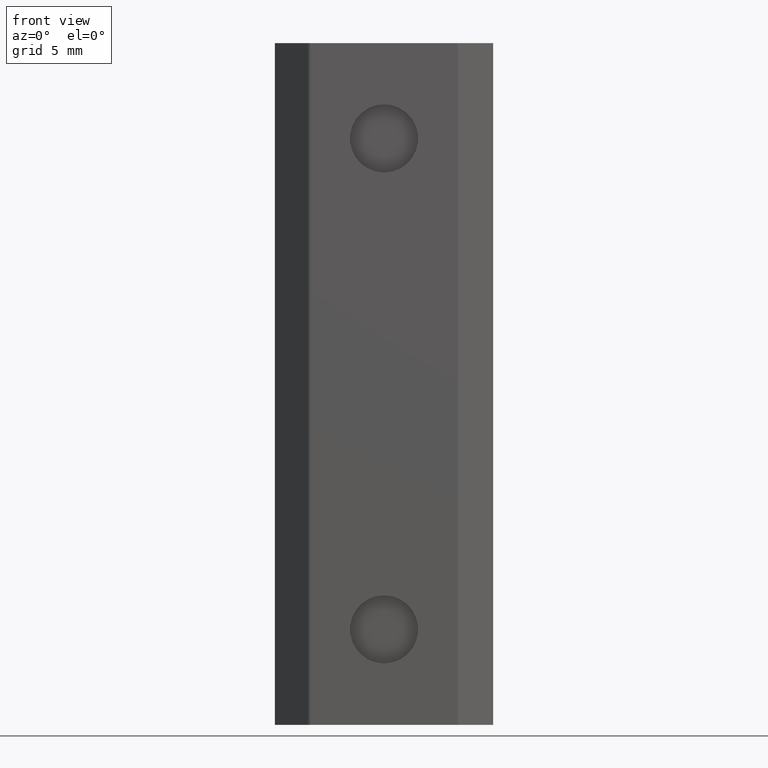
[diagram: clean part render]
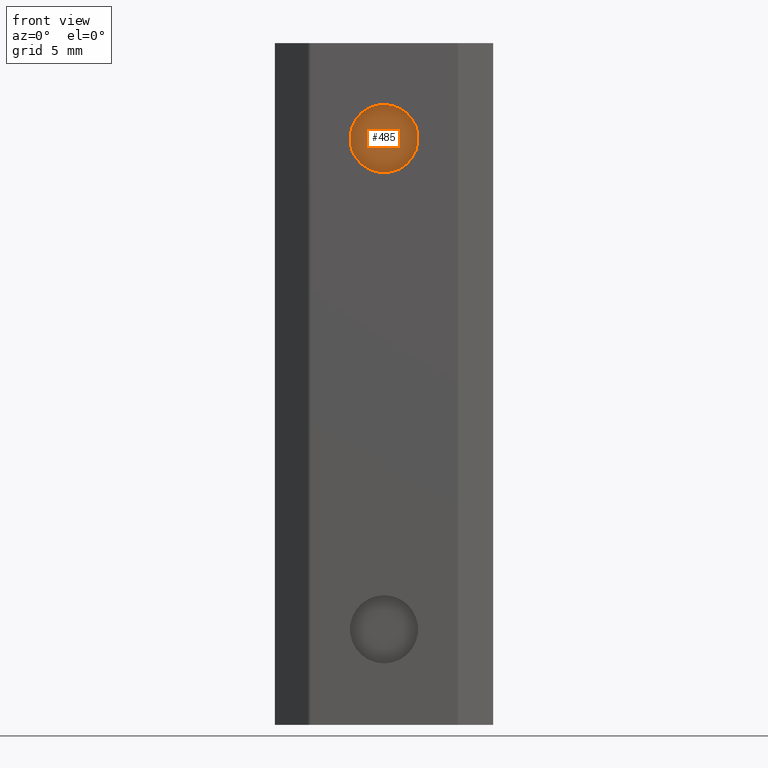
[diagram: same view with one face highlighted and labeled with its STEP entity id]
A machine part, front view. The second image highlights one B-rep face of the part: STEP entity #485.
In plain terms, the highlighted planar face has unit normal (0, -1, 0).
Its self-contained STEP definition (entity closure, byte-faithful):
#485 = ADVANCED_FACE ( 'NONE', ( #1068 ), #2231, .T. ) ;
#909 = CARTESIAN_POINT ( 'NONE',  ( 0.0000000000000000000, -9.999999999990905100, 0.0000000000000000000 ) ) ;
#961 = EDGE_CURVE ( 'NONE', #4275, #3920, #1354, .T. ) ;
#1068 = FACE_OUTER_BOUND ( 'NONE', #4354, .T. ) ;
#1123 = EDGE_CURVE ( 'NONE', #3920, #4275, #2136, .T. ) ;
#1233 = DIRECTION ( 'NONE',  ( 0.0000000000000000000, 0.0000000000000000000, 1.000000000000000000 ) ) ;
#1272 = CARTESIAN_POINT ( 'NONE',  ( 3.273151512744270300E-016, -9.999999999990905100, -2.499999999997726300 ) ) ;
#1354 = CIRCLE ( 'NONE', #4383, 2.499999999997726300 ) ;
#1914 = DIRECTION ( 'NONE',  ( 0.0000000000000000000, -0.0000000000000000000, -1.000000000000000000 ) ) ;
#2028 = AXIS2_PLACEMENT_3D ( 'NONE', #3013, #3356, #3703 ) ;
#2136 = CIRCLE ( 'NONE', #2028, 2.499999999997726300 ) ;
#2231 = PLANE ( 'NONE',  #4047 ) ;
#2241 = CARTESIAN_POINT ( 'NONE',  ( -2.499999999999997800, -10.00000000000000000, 0.0000000000000000000 ) ) ;
#2573 = DIRECTION ( 'NONE',  ( 0.0000000000000000000, -1.000000000000000000, -0.0000000000000000000 ) ) ;
#3013 = CARTESIAN_POINT ( 'NONE',  ( 0.0000000000000000000, -9.999999999990905100, 0.0000000000000000000 ) ) ;
#3356 = DIRECTION ( 'NONE',  ( 0.0000000000000000000, -1.000000000000000000, -0.0000000000000000000 ) ) ;
#3441 = CARTESIAN_POINT ( 'NONE',  ( 0.0000000000000000000, -9.999999999990905100, 2.499999999997726300 ) ) ;
#3703 = DIRECTION ( 'NONE',  ( 0.0000000000000000000, 0.0000000000000000000, 1.000000000000000000 ) ) ;
#3920 = VERTEX_POINT ( 'NONE', #3441 ) ;
#4047 = AXIS2_PLACEMENT_3D ( 'NONE', #2241, #4334, #1914 ) ;
#4228 = ORIENTED_EDGE ( 'NONE', *, *, #1123, .T. ) ;
#4262 = ORIENTED_EDGE ( 'NONE', *, *, #961, .T. ) ;
#4275 = VERTEX_POINT ( 'NONE', #1272 ) ;
#4334 = DIRECTION ( 'NONE',  ( 0.0000000000000000000, -1.000000000000000000, 0.0000000000000000000 ) ) ;
#4354 = EDGE_LOOP ( 'NONE', ( #4228, #4262 ) ) ;
#4383 = AXIS2_PLACEMENT_3D ( 'NONE', #909, #2573, #1233 ) ;